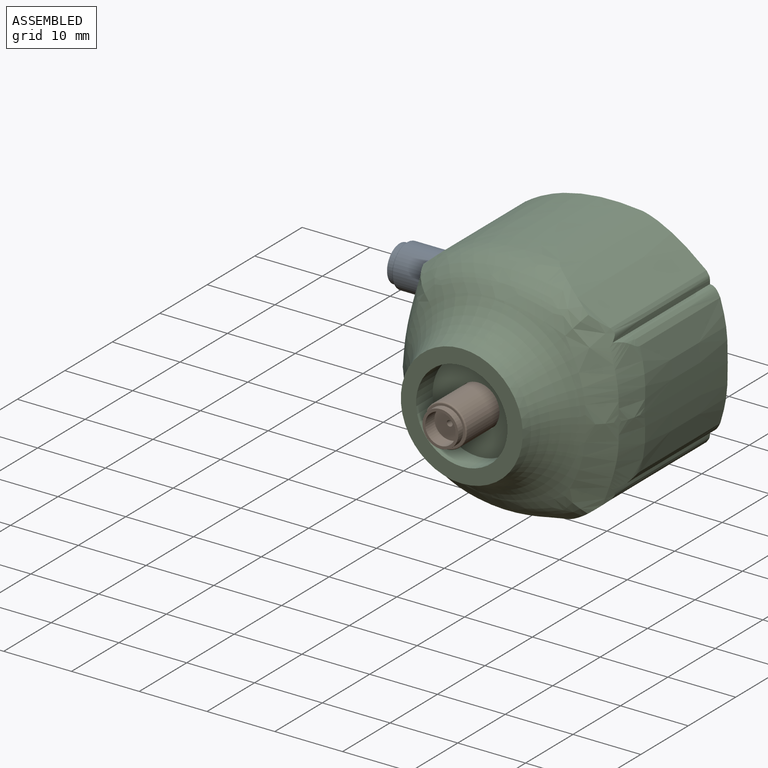
[diagram: assembled view]
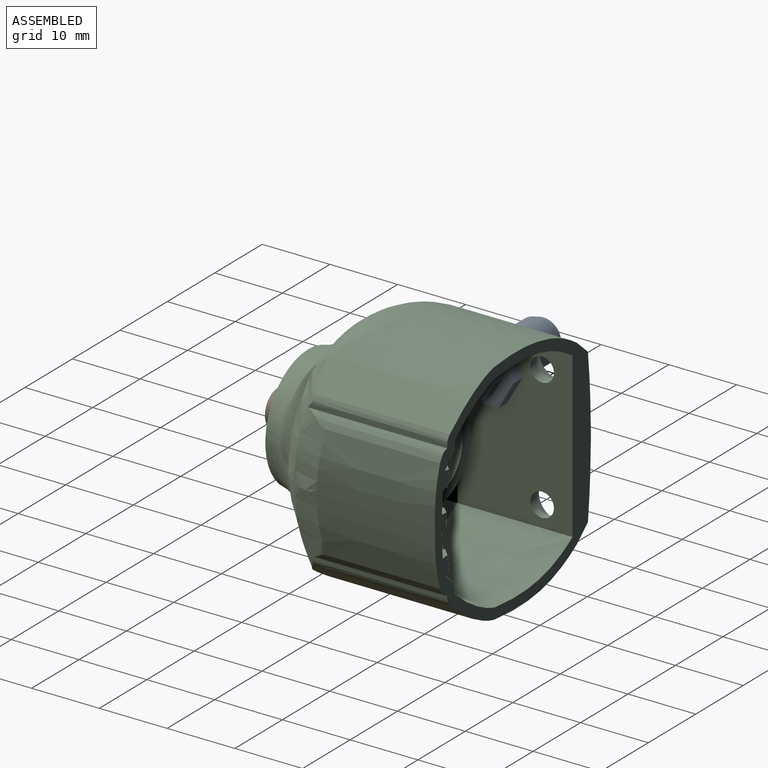
[diagram: assembled view, second angle]
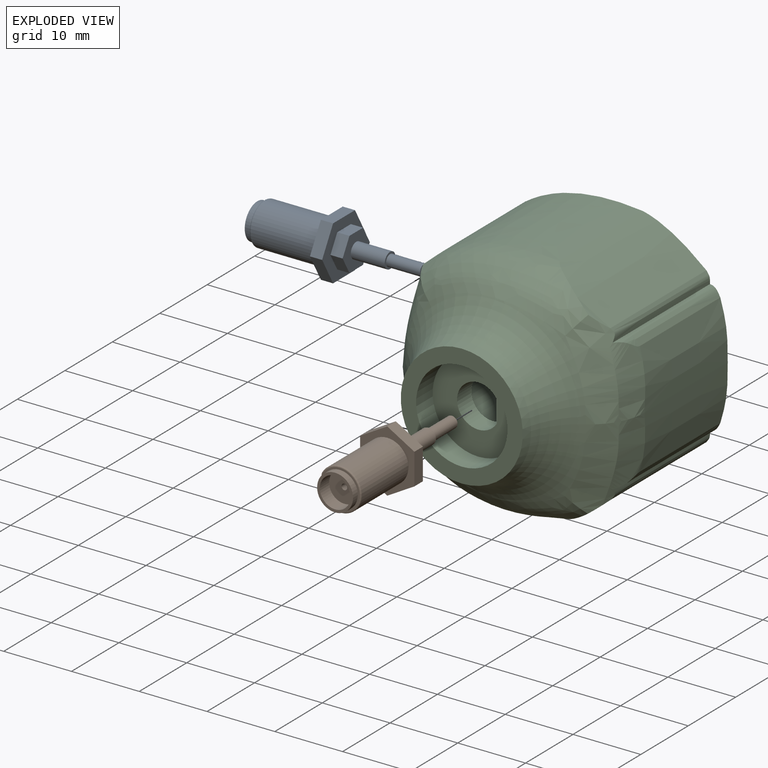
[diagram: exploded view]
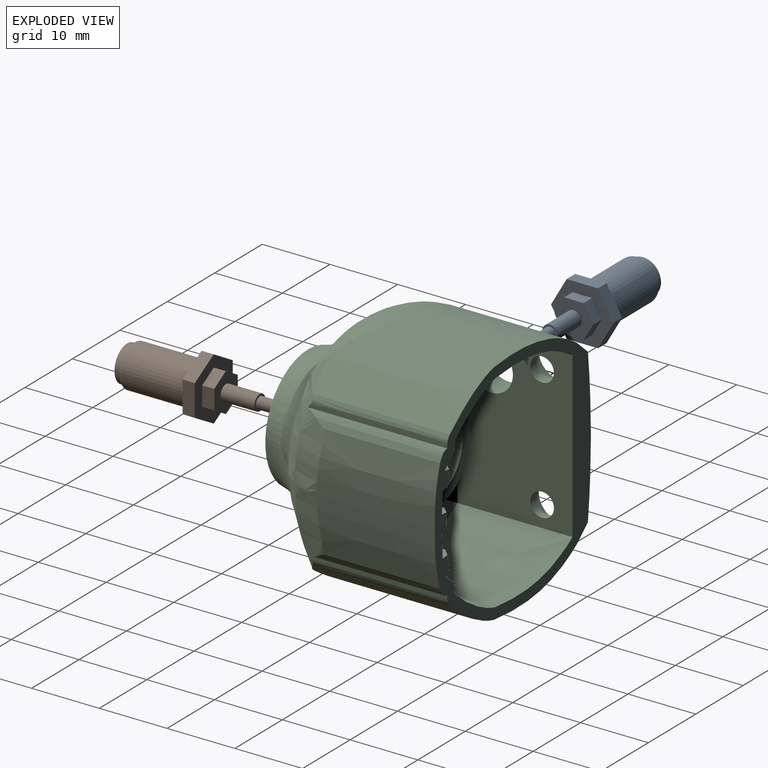
[diagram: exploded view, second angle]
ASSEMBLY  parts=3 mates=2
PART A: 29 faces, bbox 8x9.2x24.6 mm
  f0: plane 10x3.09mm, normal (-1,0,0), area 30.9mm2, adj f1,f8,f22,f28
  f1: cylinder r=3.12mm len=9.8mm, axis (0,0,-1), area 160.1mm2, adj f0,f8,f28
  f2: plane 4x2.31mm, normal (-0.5,0.87,0), area 8.3mm2, adj f3,f7,f8,f9
  f3: plane 4.62x1.8mm, normal (-1,0,0), area 8.3mm2, adj f2,f4,f8,f9
  f4: plane 4x2.31mm, normal (-0.5,-0.87,0), area 8.3mm2, adj f3,f5,f8,f9
  f5: plane 4x2.31mm, normal (0.5,-0.87,0), area 8.3mm2, adj f4,f6,f8,f9
  f6: plane 4.62x1.8mm, normal (1,0,0), area 8.3mm2, adj f5,f7,f8,f9
  f7: plane 4x2.31mm, normal (0.5,0.87,0), area 8.3mm2, adj f2,f6,f8,f9
  f8: plane 9.24x8mm, normal (0,0,1), area 25.8mm2, adj f0,f1,f2,f3,f4,f5,f6,f7
  f9: plane 9.24x8mm, normal (0,0,-1), area 34.1mm2, adj f2,f3,f4,f5,f6,f7,f10,f11
  f10: plane 2.86x1.8mm, normal (-1,0,0), area 5.2mm2, adj f9,f11,f15,f16
  f11: plane 2.48x1.8mm, normal (-0.5,-0.87,0), area 5.2mm2, adj f9,f10,f12,f16
  f12: plane 2.48x1.8mm, normal (0.5,-0.87,0), area 5.2mm2, adj f9,f11,f13,f16
  f13: plane 2.86x1.8mm, normal (1,0,0), area 5.2mm2, adj f9,f12,f14,f16
  f14: plane 2.48x1.8mm, normal (0.5,0.87,0), area 5.2mm2, adj f9,f13,f15,f16
  f15: plane 2.48x1.8mm, normal (-0.5,0.87,0), area 5.2mm2, adj f9,f10,f14,f16
  f16: plane 5.73x4.96mm, normal (0,0,-1), area 17.2mm2, adj f10,f11,f12,f13,f14,f15,f17
  f17: cylinder r=1.15mm len=5mm, axis (0,0,1), area 36.1mm2, adj f16,f18
  f18: plane 2.3x2.3mm, normal (0,0,-1), area 1.9mm2, adj f17,f19
  f19: cylinder r=0.85mm len=5mm, axis (0,0,1), area 26.7mm2, adj f18,f20
  f20: plane 1.7x1.7mm, normal (0,0,-1), area 2.3mm2, adj f19
  f21: cylinder r=2.65mm len=5.3mm, axis (0,0,1), area 16.7mm2, adj f22,f27
  f22: plane 5.83x5.62mm, normal (0,0,1), area 4.3mm2, adj f0,f21,f28
  f23: plane 0.85x0.85mm, normal (0,0,1), area 0.6mm2, adj f24
  f24: cylinder r=0.42mm len=10mm, axis (0,0,1), area 26.7mm2, adj f23,f25
  f25: plane 4.5x4.5mm, normal (0,0,1), area 15.3mm2, adj f24,f26
  f26: cylinder r=2.25mm len=4.5mm, axis (0,0,1), area 27.7mm2, adj f25,f27
  f27: plane 5.3x5.3mm, normal (0,0,1), area 6.2mm2, adj f21,f26
  f28: torus R=2.92mm, axis (0,0,1), area 5.1mm2, adj f0,f1,f22
PART B: same geometry as A
PART C: 82 faces, bbox 41.2x33.8x41.2 mm
  f0: plane 14x13.05mm, normal (0,1,0), area 42.5mm2, adj f1,f2,f79,f80
  f1: cylinder r=7mm len=14mm, axis (0,-1,0), area 302.5mm2, adj f0,f55,f79,f80
  f2: cylinder r=5.5mm len=12.5mm, axis (0,-1,0), area 395.8mm2, adj f0,f78,f79,f80
  f3: extruded ~18.99x11.36mm, area 141.4mm2, adj f21,f30,f35,f51,f62,f69
  f4: extruded ~17x16.25mm, area 288mm2, adj f5,f22,f35,f73
  f5: extruded ~17x8.54mm, area 169.8mm2, adj f4,f18,f35,f75
  f6: extruded ~21.75x9.25mm, area 217.5mm2, adj f7,f24,f35,f64,f65
  f7: extruded ~20.55x1.68mm, area 37.4mm2, adj f6,f8,f35,f64
  f8: extruded ~20.55x1.51mm, area 40.2mm2, adj f7,f25,f35,f64
  f9: extruded ~20.55x1.51mm, area 40.2mm2, adj f10,f26,f35,f66
  f10: extruded ~20.55x1.68mm, area 37.4mm2, adj f9,f27,f35,f66
  f11: extruded ~18.07x1.76mm, area 41.7mm2, adj f12,f20,f35,f36,f72,f74
  f12: plane 15.07x2.34mm, normal (-0.98,0,-0.2), area 35.5mm2, adj f11,f13,f39,f74
  f13: plane 17x3.26mm, normal (-1,0,-0.04), area 55.5mm2, adj f12,f31,f35,f38,f41,f74
  f14: plane 17x3.43mm, normal (-1,0,0.06), area 58.5mm2, adj f15,f31,f35,f40,f44,f76
  f15: plane 14.96x2.37mm, normal (-0.99,0,0.17), area 35.7mm2, adj f14,f16,f47,f76
  f16: extruded ~18.07x1.8mm, area 42.6mm2, adj f15,f17,f35,f46,f75,f76
  f17: extruded ~18.07x0.36mm, area 7.8mm2, adj f16,f18,f35,f75
  f18: plane 17.96x1.43mm, normal (-0.99,0,0.11), area 25mm2, adj f5,f17,f35,f75
  f19: plane 17.96x1.43mm, normal (-0.99,0,-0.11), area 25mm2, adj f20,f33,f35,f72
  f20: extruded ~18.07x0.36mm, area 7.8mm2, adj f11,f19,f35,f72
  f21: extruded ~18.99x11.36mm, area 173.6mm2, adj f3,f34,f35,f50,f67
  f22: plane 24.25x17mm, normal (1,0,0), area 360.8mm2, adj f4,f32,f35,f48,f49,f62,f71
  f23: extruded ~17.31x17.31mm, area 309.6mm2, adj f24,f34,f35,f65
  f24: plane 17.83x0.29mm, normal (0.17,0,-0.99), area 3.5mm2, adj f6,f23,f35,f65
  f25: extruded ~17.46x8.38mm, area 145.3mm2, adj f8,f26,f35,f64
  f26: extruded ~17.46x8.38mm, area 145.3mm2, adj f9,f25,f35,f66
  f27: extruded ~21.76x9.25mm, area 220.2mm2, adj f10,f28,f35,f66,f68
  f28: plane 17.8x0.29mm, normal (0.17,0,0.99), area 3.5mm2, adj f27,f29,f35,f68
  f29: extruded ~17.33x17.31mm, area 310.1mm2, adj f28,f30,f35,f68
  f30: plane 19.94x3.44mm, normal (-0.67,0,0.75), area 55.6mm2, adj f3,f29,f35,f51,f68,f69
  f31: plane 14.75x2.5mm, normal (-1,0,-0.02), area 36.8mm2, adj f13,f14,f43,f74,f76
  f32: extruded ~17x16.25mm, area 288mm2, adj f22,f33,f35,f70
  f33: extruded ~17x8.54mm, area 169.8mm2, adj f19,f32,f35,f72
  f34: plane 19.97x3.44mm, normal (-0.67,0,-0.75), area 55.7mm2, adj f21,f23,f35,f50,f65,f67
  f35: plane 35.02x33.14mm, normal (0,1,0), area 223.3mm2, adj f3,f4,f5,f6,f7,f8,f9,f10
  f36: plane 2.31x1.91mm, normal (-0.14,0,0.99), area 3.8mm2, adj f11,f35,f37,f39,f54,f59
  f37: plane 2.33x0.8mm, normal (-0.99,0,-0.14), area 1.9mm2, adj f36,f38,f54,f59
  f38: plane 2.3x2.05mm, normal (0.13,0,-0.99), area 4.1mm2, adj f13,f35,f37,f39,f54,f59
  f39: plane 2.54x1.88mm, normal (0,-1,0), area 3.5mm2, adj f12,f36,f38,f59
  f40: plane 2.3x1.92mm, normal (0,0,-1), area 3.8mm2, adj f14,f35,f42,f43,f53,f60
  f41: plane 2.3x1.95mm, normal (-0.05,0,1), area 3.9mm2, adj f13,f35,f42,f43,f53,f60
  f42: plane 2.41x0.8mm, normal (-1,0,-0.03), area 1.9mm2, adj f40,f41,f53,f60
  f43: plane 2.51x1.49mm, normal (0,-1,0), area 3.5mm2, adj f31,f40,f41,f60
  f44: plane 2.3x1.98mm, normal (0.09,0,1), area 4mm2, adj f14,f35,f45,f47,f52,f61
  f45: plane 2.24x0.8mm, normal (-0.99,0,0.14), area 1.8mm2, adj f44,f46,f52,f61
  f46: plane 2.3x1.9mm, normal (-0.16,0,-0.99), area 3.8mm2, adj f16,f35,f45,f47,f52,f61
  f47: plane 2.5x1.81mm, normal (0,-1,0), area 3.4mm2, adj f15,f44,f46,f61
  f48: cylinder r=1.75mm len=3.5mm, axis (1,0,0), area 17.6mm2, adj f22,f51
  f49: cylinder r=1.75mm len=3.5mm, axis (1,0,0), area 12.5mm2, adj f22,f50
  f50: bspline ~5.88x5.78mm, area 35mm2, adj f21,f34,f49
  f51: bspline ~5.87x5.78mm, area 35mm2, adj f3,f30,f48
  f52: plane 2.4x1.32mm, normal (-0.7,0.71,0.1), area 3.3mm2, adj f35,f44,f45,f46
  f53: plane 2.46x1.07mm, normal (-0.71,0.71,-0.02), area 3.4mm2, adj f35,f40,f41,f42
  f54: plane 2.47x1.31mm, normal (-0.7,0.71,-0.1), area 3.3mm2, adj f35,f36,f37,f38
  f55: plane 25.78x22.09mm, normal (0,1,0), area 325.9mm2, adj f1,f70,f71,f72,f73,f74,f75,f76
  f56: plane 3.25x3mm, normal (-1,0,0), area 9.7mm2, adj f57,f77,f78
  f57: cylinder r=3.15mm len=6.3mm, axis (0,1,0), area 49.1mm2, adj f56,f77,f78
  f58: plane 18x18mm, normal (0,-1,0), area 111.3mm2, adj f63,f81
  f59: plane 2.4x0.81mm, normal (-0.7,-0.71,-0.1), area 1.7mm2, adj f36,f37,f38,f39
  f60: plane 2.44x0.57mm, normal (-0.71,-0.71,-0.02), area 1.7mm2, adj f40,f41,f42,f43
  f61: plane 2.32x0.82mm, normal (-0.7,-0.71,0.1), area 1.6mm2, adj f44,f45,f46,f47
  f62: cylinder r=3.2mm len=6.4mm, axis (1,0,0), area 76.1mm2, adj f3,f22
  f63: torus R=18.55mm, axis (0,-1,0), area 566.2mm2, adj f58,f64,f65,f66,f67,f68,f69
  f64: bspline ~17.3x9.58mm, area 99.5mm2, adj f6,f7,f8,f25,f63,f65,f66
  f65: bspline ~29.29x10.9mm, area 192.1mm2, adj f6,f23,f24,f34,f63,f64,f67
  f66: bspline ~17.16x9.47mm, area 99.2mm2, adj f9,f10,f26,f27,f63,f64,f68
  f67: bspline ~14.92x9.23mm, area 96.3mm2, adj f21,f34,f63,f65,f69
  f68: bspline ~30.13x11.16mm, area 192.5mm2, adj f27,f28,f29,f30,f63,f66,f69
  f69: bspline ~14.87x9.34mm, area 96.3mm2, adj f3,f30,f63,f67,f68
  f70: bspline ~16.25x5.91mm, area 63.5mm2, adj f32,f55,f71,f72
  f71: plane 24.49x3.24mm, normal (0.71,0.71,0), area 95.9mm2, adj f22,f55,f70,f73
  f72: bspline ~12.06x9.7mm, area 46.6mm2, adj f11,f19,f20,f33,f55,f70,f74
  f73: bspline ~16.25x5.91mm, area 63.6mm2, adj f4,f55,f71,f75
  f74: plane 8.17x3.32mm, normal (-0.71,0.71,-0.03), area 31.7mm2, adj f11,f12,f13,f31,f55,f72,f76
  f75: bspline ~12.04x9.68mm, area 46.2mm2, adj f5,f16,f17,f18,f55,f73,f76
  f76: plane 7.32x3.43mm, normal (-0.71,0.71,0.04), area 28.1mm2, adj f14,f15,f16,f31,f55,f74,f75
  f77: plane 13.5x13.5mm, normal (0,-1,0), area 113mm2, adj f56,f57,f81
  f78: plane 11x11mm, normal (0,1,0), area 64.8mm2, adj f2,f56,f57
  f79: cylinder r=4.55mm len=10.03mm, axis (-1,0,0), area 21.3mm2, adj f0,f1,f2,f80
  f80: plane 4.42x1.82mm, normal (-1,0,0), area 7.4mm2, adj f0,f1,f2,f79
  f81: cylinder r=6.75mm len=13.5mm, axis (0,-1,0), area 148.4mm2, adj f58,f77
PLACE A rot(axis=(0,-1,0),90deg) t=(-10.66,4.09,17.73)mm
PLACE B rot(axis=(1,0,0),90deg) t=(-0.98,-6.61,10.6)mm
PLACE C rot(axis=(1,0,0),0deg) t=(0.11,-18.81,10.6)mm
MATE fastened A.f1 <-> C.f79  axis (1,0,0) through (-12.46,4.09,17.73)mm
MATE fastened C.f1 <-> B.f1  axis (0,1,0) through (-0.98,-8.41,10.6)mm
